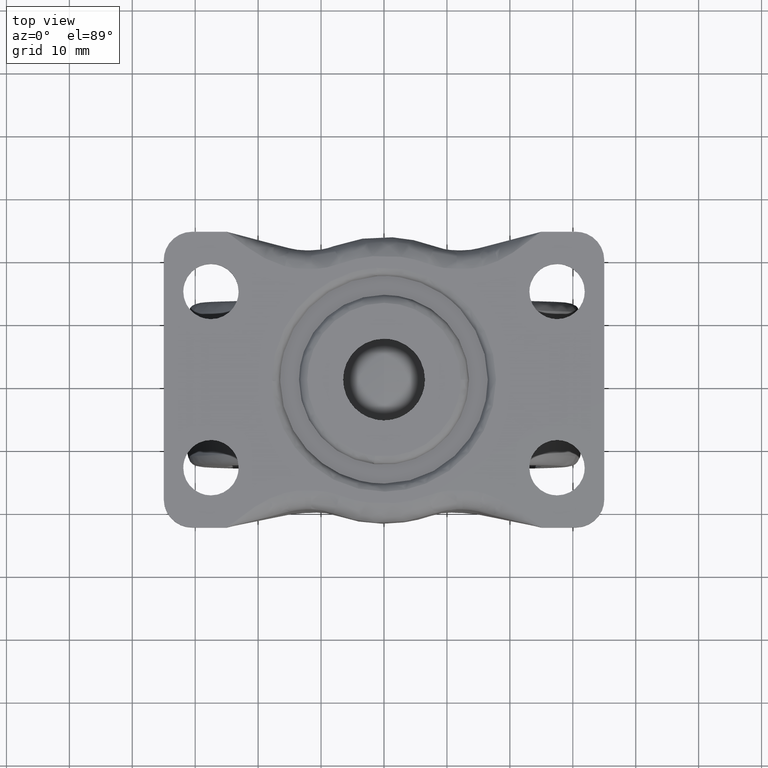
[diagram: clean part render]
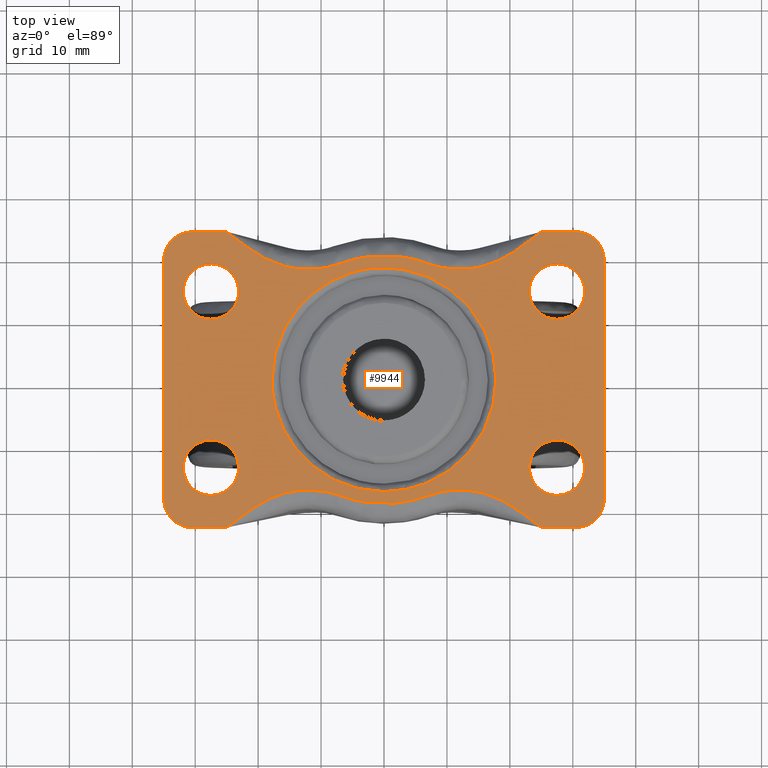
[diagram: same view with one face highlighted and labeled with its STEP entity id]
A machine part, top view. The second image highlights one B-rep face of the part: STEP entity #9944.
In plain terms, the highlighted face is a freeform B-spline surface patch.
Its self-contained STEP definition (entity closure, byte-faithful):
#2230=CARTESIAN_POINT('',(-30.859644710410169,11.158734838101150,47.500000000000000));
#2231=VERTEX_POINT('',#2230);
#2237=CARTESIAN_POINT('',(-27.500000138470700,9.600000000000003,47.500000000000000));
#2238=VERTEX_POINT('',#2237);
#2239=CARTESIAN_POINT('',(-30.859644710410169,11.158734838101150,47.500000000000000));
#2240=CARTESIAN_POINT('',(-30.525618298630590,10.763173844289820,47.499999999999993));
#2241=CARTESIAN_POINT('',(-29.871502339940768,10.221597284016729,47.500000000000142));
#2242=CARTESIAN_POINT('',(-28.694491124414970,9.713973376166065,47.499999999999773));
#2243=CARTESIAN_POINT('',(-27.938048924384670,9.599785051184480,47.500000000000142));
#2244=CARTESIAN_POINT('',(-27.500000138470700,9.600000000000003,47.500000000000000));
#2245=B_SPLINE_CURVE_WITH_KNOTS('',3,(#2239,#2240,#2241,#2242,#2243,#2244),.UNSPECIFIED.,.F.,.U.,(4,1,1,4),(0.000000078797359,1.553049608325570,2.508724733558815,3.822844168126473),.UNSPECIFIED.);
#2246=EDGE_CURVE('',#2231,#2238,#2245,.T.);
#2248=CARTESIAN_POINT('',(-23.100000000000001,14.0,47.500000000000000));
#2249=VERTEX_POINT('',#2248);
#2250=CARTESIAN_POINT('',(-27.500000138470700,9.600000000000003,47.500000000000000));
#2251=CARTESIAN_POINT('',(-27.140025082519369,9.599917597533933,47.500000000000057));
#2252=CARTESIAN_POINT('',(-26.456125569858980,9.684418643517800,47.499999999999943));
#2253=CARTESIAN_POINT('',(-25.403661099020571,10.075497838093330,47.499999999999950));
#2254=CARTESIAN_POINT('',(-24.362117778781730,10.808651719070500,47.500000000000078));
#2255=CARTESIAN_POINT('',(-23.622381149871408,11.806359571627720,47.499999999999972));
#2256=CARTESIAN_POINT('',(-23.193000255904099,12.920145626854771,47.499999999999929));
#2257=CARTESIAN_POINT('',(-23.099866504802460,13.604016161131650,47.500000000000057));
#2258=CARTESIAN_POINT('',(-23.100000000000001,14.0,47.500000000000000));
#2259=B_SPLINE_CURVE_WITH_KNOTS('',3,(#2250,#2251,#2252,#2253,#2254,#2255,#2256,#2257,#2258),.UNSPECIFIED.,.F.,.U.,(4,1,1,1,1,1,4),(0.000000379312295,1.079928237397049,2.051923522054192,3.347895113705480,4.859754210441937,5.723735382825463,6.911677353140562),.UNSPECIFIED.);
#2260=EDGE_CURVE('',#2238,#2249,#2259,.T.);
#2262=CARTESIAN_POINT('',(-27.499999861529300,18.399999999999999,47.500000000000000));
#2263=VERTEX_POINT('',#2262);
#2264=CARTESIAN_POINT('',(-23.100000000000001,14.0,47.500000000000000));
#2265=CARTESIAN_POINT('',(-23.099746927157788,14.467993034019520,47.500000000000000));
#2266=CARTESIAN_POINT('',(-23.227588508119759,15.259764809483681,47.500000000000078));
#2267=CARTESIAN_POINT('',(-23.695182836415050,16.280528609189780,47.499999999999943));
#2268=CARTESIAN_POINT('',(-24.353017272190119,17.145359325689839,47.499999999999972));
#2269=CARTESIAN_POINT('',(-25.184937222884990,17.794520670710948,47.500000000000242));
#2270=CARTESIAN_POINT('',(-26.276247329021921,18.278209099909699,47.499999999999993));
#2271=CARTESIAN_POINT('',(-27.032003134663789,18.400253656588930,47.499999999999638));
#2272=CARTESIAN_POINT('',(-27.499999861529300,18.399999999999999,47.500000000000000));
#2273=B_SPLINE_CURVE_WITH_KNOTS('',3,(#2264,#2265,#2266,#2267,#2268,#2269,#2270,#2271,#2272),.UNSPECIFIED.,.F.,.U.,(4,1,1,1,1,1,4),(0.000000379502021,1.403915691918203,2.375910954606597,3.347895038454420,4.643780731750653,5.507761884588295,6.911677197047930),.UNSPECIFIED.);
#2274=EDGE_CURVE('',#2249,#2263,#2273,.T.);
#2276=CARTESIAN_POINT('',(-30.528760109647301,17.191647207006319,47.500000000000000));
#2277=VERTEX_POINT('',#2276);
#2278=CARTESIAN_POINT('',(-27.499999861529300,18.399999999999999,47.500000000000000));
#2279=CARTESIAN_POINT('',(-28.091650984871940,18.400657612694850,47.499999999999957));
#2280=CARTESIAN_POINT('',(-29.204544161816830,18.171781728332970,47.500000000000128));
#2281=CARTESIAN_POINT('',(-30.150376350513081,17.551275429770119,47.499999999999872));
#2282=CARTESIAN_POINT('',(-30.528760109647301,17.191647207006319,47.500000000000000));
#2283=B_SPLINE_CURVE_WITH_KNOTS('',3,(#2278,#2279,#2280,#2281,#2282),.UNSPECIFIED.,.F.,.U.,(4,1,4),(0.000000092982268,1.774690226144337,3.340638647277100),.UNSPECIFIED.);
#2284=EDGE_CURVE('',#2263,#2277,#2283,.T.);
#2366=CARTESIAN_POINT('',(-31.899999999999999,14.0,47.500000000000000));
#2367=VERTEX_POINT('',#2366);
#2368=CARTESIAN_POINT('',(-30.528760109647301,17.191647207006319,47.500000000000000));
#2369=CARTESIAN_POINT('',(-30.988220309076649,16.756940563448950,47.500000000000000));
#2370=CARTESIAN_POINT('',(-31.670328342940369,15.747867634980670,47.499999999999950));
#2371=CARTESIAN_POINT('',(-31.900545557546071,14.558048400769280,47.499999999999993));
#2372=CARTESIAN_POINT('',(-31.899999999999999,14.0,47.500000000000000));
#2373=B_SPLINE_CURVE_WITH_KNOTS('',3,(#2368,#2369,#2370,#2371,#2372),.UNSPECIFIED.,.F.,.U.,(4,1,4),(0.000000090471795,1.897096706250893,3.571039315295960),.UNSPECIFIED.);
#2374=EDGE_CURVE('',#2277,#2367,#2373,.T.);
#2376=CARTESIAN_POINT('',(-31.899999999999999,14.0,47.500000000000000));
#2377=CARTESIAN_POINT('',(-31.900049448842019,13.678244997963620,47.500000000000071));
#2378=CARTESIAN_POINT('',(-31.829121897259231,13.034769001744310,47.500000000000057));
#2379=CARTESIAN_POINT('',(-31.494405729980819,12.054537710189850,47.499999999999453));
#2380=CARTESIAN_POINT('',(-31.109066714850560,11.453471459002920,47.500000000000171));
#2381=CARTESIAN_POINT('',(-30.859644710410169,11.158734838101150,47.500000000000000));
#2382=B_SPLINE_CURVE_WITH_KNOTS('',3,(#2376,#2377,#2378,#2379,#2380,#2381),.UNSPECIFIED.,.F.,.U.,(4,1,1,4),(0.000000084838570,0.965272616916994,1.930523841588983,3.088838857794543),.UNSPECIFIED.);
#2383=EDGE_CURVE('',#2367,#2231,#2382,.T.);
#2428=CARTESIAN_POINT('',(-30.859644710410169,-16.841265161898850,47.500000000000000));
#2429=VERTEX_POINT('',#2428);
#2435=CARTESIAN_POINT('',(-27.500000138470700,-18.399999999999999,47.500000000000000));
#2436=VERTEX_POINT('',#2435);
#2437=CARTESIAN_POINT('',(-30.859644710410169,-16.841265161898850,47.500000000000000));
#2438=CARTESIAN_POINT('',(-30.576932357265509,-17.175865010978860,47.499999999999972));
#2439=CARTESIAN_POINT('',(-30.001295101294570,-17.679743219071600,47.499999999999993));
#2440=CARTESIAN_POINT('',(-28.853636757602569,-18.250640912136699,47.500000000000071));
#2441=CARTESIAN_POINT('',(-28.017729015435389,-18.400385595160831,47.499999999999943));
#2442=CARTESIAN_POINT('',(-27.500000138470700,-18.399999999999999,47.500000000000000));
#2443=B_SPLINE_CURVE_WITH_KNOTS('',3,(#2437,#2438,#2439,#2440,#2441,#2442),.UNSPECIFIED.,.F.,.U.,(4,1,1,4),(0.000000078796406,1.314119513368167,2.269794638598055,3.822844168126464),.UNSPECIFIED.);
#2444=EDGE_CURVE('',#2429,#2436,#2443,.T.);
#2446=CARTESIAN_POINT('',(-23.100000000000001,-14.0,47.500000000000000));
#2447=VERTEX_POINT('',#2446);
#2448=CARTESIAN_POINT('',(-27.500000138470700,-18.399999999999999,47.500000000000000));
#2449=CARTESIAN_POINT('',(-26.959964465078102,-18.400481258904609,47.500000000000007));
#2450=CARTESIAN_POINT('',(-26.096366701556271,-18.238883346441959,47.500000000000000));
#2451=CARTESIAN_POINT('',(-25.099832565661458,-17.721640910407569,47.500000000000021));
#2452=CARTESIAN_POINT('',(-24.309869380322429,-17.089583608825411,47.499999999999993));
#2453=CARTESIAN_POINT('',(-23.705473972100929,-16.315072307452219,47.500000000000007));
#2454=CARTESIAN_POINT('',(-23.221787316437140,-15.223756610255100,47.499999999999993));
#2455=CARTESIAN_POINT('',(-23.099750107846699,-14.467991764218979,47.500000000000021));
#2456=CARTESIAN_POINT('',(-23.100000000000001,-14.0,47.500000000000000));
#2457=B_SPLINE_CURVE_WITH_KNOTS('',3,(#2448,#2449,#2450,#2451,#2452,#2453,#2454,#2455,#2456),.UNSPECIFIED.,.F.,.U.,(4,1,1,1,1,1,4),(0.000000379311157,1.619921559305186,2.591929156582037,3.347895113704792,4.643780836413892,5.507762009036499,6.911677353140562),.UNSPECIFIED.);
#2458=EDGE_CURVE('',#2436,#2447,#2457,.T.);
#2460=CARTESIAN_POINT('',(-27.499999861529300,-9.600000000000003,47.499999999999993));
#2461=VERTEX_POINT('',#2460);
#2462=CARTESIAN_POINT('',(-23.100000000000001,-14.0,47.500000000000000));
#2463=CARTESIAN_POINT('',(-23.099154886808670,-13.387873101704910,47.500000000000007));
#2464=CARTESIAN_POINT('',(-23.298615505695420,-12.452695052655089,47.500000000000021));
#2465=CARTESIAN_POINT('',(-23.991665121428792,-11.263565429845890,47.499999999999957));
#2466=CARTESIAN_POINT('',(-24.815019431570519,-10.440164574469550,47.500000000000107));
#2467=CARTESIAN_POINT('',(-26.024394808478998,-9.774542095660165,47.499999999999872));
#2468=CARTESIAN_POINT('',(-26.959974090138321,-9.599533507972828,47.500000000000107));
#2469=CARTESIAN_POINT('',(-27.499999861529300,-9.600000000000003,47.499999999999993));
#2470=B_SPLINE_CURVE_WITH_KNOTS('',3,(#2462,#2463,#2464,#2465,#2466,#2467,#2468,#2469),.UNSPECIFIED.,.F.,.U.,(4,1,1,1,1,4),(0.000000379502003,1.835917644911087,2.807884315248856,4.103793261500282,5.291756053631572,6.911677197047903),.UNSPECIFIED.);
#2471=EDGE_CURVE('',#2447,#2461,#2470,.T.);
#2473=CARTESIAN_POINT('',(-30.528760109647301,-10.808352792993690,47.500000000000000));
#2474=VERTEX_POINT('',#2473);
#2475=CARTESIAN_POINT('',(-27.499999861529300,-9.600000000000003,47.499999999999993));
#2476=CARTESIAN_POINT('',(-28.091651197479042,-9.599346674299424,47.499999999999972));
#2477=CARTESIAN_POINT('',(-29.204542817872500,-9.828215935082836,47.500000000000078));
#2478=CARTESIAN_POINT('',(-30.150375682169781,-10.448725854797390,47.499999999999929));
#2479=CARTESIAN_POINT('',(-30.528760109647301,-10.808352792993690,47.500000000000000));
#2480=B_SPLINE_CURVE_WITH_KNOTS('',3,(#2475,#2476,#2477,#2478,#2479),.UNSPECIFIED.,.F.,.U.,(4,1,4),(0.000000092982487,1.774690226144289,3.340638647277110),.UNSPECIFIED.);
#2481=EDGE_CURVE('',#2461,#2474,#2480,.T.);
#2561=CARTESIAN_POINT('',(-31.899999999999999,-14.0,47.500000000000000));
#2562=VERTEX_POINT('',#2561);
#2563=CARTESIAN_POINT('',(-30.528760109647301,-10.808352792993690,47.500000000000000));
#2564=CARTESIAN_POINT('',(-30.988221104237830,-11.243060580011520,47.500000000000107));
#2565=CARTESIAN_POINT('',(-31.670327500263120,-12.252131202937489,47.499999999999787));
#2566=CARTESIAN_POINT('',(-31.900545782846962,-13.441951905616341,47.500000000000149));
#2567=CARTESIAN_POINT('',(-31.899999999999999,-14.0,47.500000000000000));
#2568=B_SPLINE_CURVE_WITH_KNOTS('',3,(#2563,#2564,#2565,#2566,#2567),.UNSPECIFIED.,.F.,.U.,(4,1,4),(0.000000090471681,1.897096706250866,3.571039315295943),.UNSPECIFIED.);
#2569=EDGE_CURVE('',#2474,#2562,#2568,.T.);
#2571=CARTESIAN_POINT('',(-31.899999999999999,-14.0,47.500000000000000));
#2572=CARTESIAN_POINT('',(-31.900512116646279,-14.547030117843340,47.499999999999972));
#2573=CARTESIAN_POINT('',(-31.705330692838931,-15.576211111866950,47.500000000000021));
#2574=CARTESIAN_POINT('',(-31.171529692202508,-16.472899625202750,47.499999999999929));
#2575=CARTESIAN_POINT('',(-30.859644710410169,-16.841265161898850,47.500000000000000));
#2576=B_SPLINE_CURVE_WITH_KNOTS('',3,(#2571,#2572,#2573,#2574,#2575),.UNSPECIFIED.,.F.,.U.,(4,1,4),(0.000000084837523,1.640918061707243,3.088838857794540),.UNSPECIFIED.);
#2577=EDGE_CURVE('',#2562,#2429,#2576,.T.);
#2825=CARTESIAN_POINT('',(24.140355289589831,11.158734838101150,47.500000000000000));
#2826=VERTEX_POINT('',#2825);
#2832=CARTESIAN_POINT('',(27.499999861529290,9.600000000000005,47.500000000000000));
#2833=VERTEX_POINT('',#2832);
#2834=CARTESIAN_POINT('',(24.140355289589831,11.158734838101150,47.500000000000000));
#2835=CARTESIAN_POINT('',(24.474377659950090,10.763170550957200,47.499999999999993));
#2836=CARTESIAN_POINT('',(25.128501135240651,10.221606851728540,47.500000000000007));
#2837=CARTESIAN_POINT('',(26.305504317390291,9.713956816933282,47.499999999999979));
#2838=CARTESIAN_POINT('',(27.061953619094581,9.599801784829579,47.500000000000092));
#2839=CARTESIAN_POINT('',(27.499999861529290,9.600000000000005,47.500000000000000));
#2840=B_SPLINE_CURVE_WITH_KNOTS('',3,(#2834,#2835,#2836,#2837,#2838,#2839),.UNSPECIFIED.,.F.,.U.,(4,1,1,4),(0.000000078797478,1.553049608325670,2.508724733558885,3.822844168126460),.UNSPECIFIED.);
#2841=EDGE_CURVE('',#2826,#2833,#2840,.T.);
#2843=CARTESIAN_POINT('',(31.899999999999999,14.0,47.500000000000000));
#2844=VERTEX_POINT('',#2843);
#2845=CARTESIAN_POINT('',(27.499999861529290,9.600000000000005,47.500000000000000));
#2846=CARTESIAN_POINT('',(28.040020412307658,9.599532359776665,47.499999999999993));
#2847=CARTESIAN_POINT('',(28.975600103130041,9.774557249074892,47.500000000000000));
#2848=CARTESIAN_POINT('',(30.248738914928950,10.475092180358111,47.500000000000057));
#2849=CARTESIAN_POINT('',(31.105102726659378,11.374608243383920,47.499999999999972));
#2850=CARTESIAN_POINT('',(31.738844379965240,12.596402859378040,47.500000000000078));
#2851=CARTESIAN_POINT('',(31.900483153935269,13.459962682737959,47.499999999999957));
#2852=CARTESIAN_POINT('',(31.899999999999999,14.0,47.500000000000000));
#2853=B_SPLINE_CURVE_WITH_KNOTS('',3,(#2845,#2846,#2847,#2848,#2849,#2850,#2851,#2852),.UNSPECIFIED.,.F.,.U.,(4,1,1,1,1,4),(0.000000379311311,1.619921559305459,2.807884378384101,4.319748575899428,5.291756173191606,6.911677353140565),.UNSPECIFIED.);
#2854=EDGE_CURVE('',#2833,#2844,#2853,.T.);
#2856=CARTESIAN_POINT('',(27.500000138470700,18.399999999999999,47.500000000000000));
#2857=VERTEX_POINT('',#2856);
#2858=CARTESIAN_POINT('',(31.899999999999999,14.0,47.500000000000000));
#2859=CARTESIAN_POINT('',(31.900252470253939,14.467996852814400,47.499999999999943));
#2860=CARTESIAN_POINT('',(31.778222896298811,15.223762235878530,47.500000000000092));
#2861=CARTESIAN_POINT('',(31.367683380019340,16.149655456290532,47.499999999999950));
#2862=CARTESIAN_POINT('',(30.815906588774091,16.954144335205200,47.499999999999993));
#2863=CARTESIAN_POINT('',(29.953248242956100,17.736354609904431,47.500000000000192));
#2864=CARTESIAN_POINT('',(28.759892700074300,18.282677011790810,47.499999999999453));
#2865=CARTESIAN_POINT('',(27.895981421965409,18.400116269153958,47.500000000000568));
#2866=CARTESIAN_POINT('',(27.500000138470700,18.399999999999999,47.500000000000000));
#2867=B_SPLINE_CURVE_WITH_KNOTS('',3,(#2858,#2859,#2860,#2861,#2862,#2863,#2864,#2865,#2866),.UNSPECIFIED.,.F.,.U.,(4,1,1,1,1,1,4),(0.000000379502717,1.403915691918759,2.267896844907549,3.023920789247620,4.319748478294568,5.723735253699697,6.911677197047931),.UNSPECIFIED.);
#2868=EDGE_CURVE('',#2844,#2857,#2867,.T.);
#2870=CARTESIAN_POINT('',(24.471239890352699,17.191647207006319,47.500000000000000));
#2871=VERTEX_POINT('',#2870);
#2872=CARTESIAN_POINT('',(27.500000138470700,18.399999999999999,47.500000000000000));
#2873=CARTESIAN_POINT('',(27.117217438032270,18.400104300471131,47.500000000000028));
#2874=CARTESIAN_POINT('',(26.456133003451701,18.313168174630071,47.499999999999957));
#2875=CARTESIAN_POINT('',(25.407658980586088,17.923445523567072,47.500000000000078));
#2876=CARTESIAN_POINT('',(24.799237847559269,17.503245155636812,47.499999999999858));
#2877=CARTESIAN_POINT('',(24.471239890352699,17.191647207006319,47.500000000000000));
#2878=B_SPLINE_CURVE_WITH_KNOTS('',3,(#2872,#2873,#2874,#2875,#2876,#2877),.UNSPECIFIED.,.F.,.U.,(4,1,1,4),(0.000000092981786,1.148348439412077,1.983476934574824,3.340638647277105),.UNSPECIFIED.);
#2879=EDGE_CURVE('',#2857,#2871,#2878,.T.);
#2961=CARTESIAN_POINT('',(23.100000000000001,14.0,47.500000000000000));
#2962=VERTEX_POINT('',#2961);
#2963=CARTESIAN_POINT('',(24.471239890352699,17.191647207006319,47.500000000000000));
#2964=CARTESIAN_POINT('',(24.174319015827169,16.910081910513039,47.500000000000043));
#2965=CARTESIAN_POINT('',(23.776995978601398,16.410292688947042,47.500000000000021));
#2966=CARTESIAN_POINT('',(23.250649370047789,15.338766211676210,47.499999999999993));
#2967=CARTESIAN_POINT('',(23.099416737857631,14.558079963300800,47.500000000000107));
#2968=CARTESIAN_POINT('',(23.100000000000001,14.0,47.500000000000000));
#2969=B_SPLINE_CURVE_WITH_KNOTS('',3,(#2963,#2964,#2965,#2966,#2967,#2968),.UNSPECIFIED.,.F.,.U.,(4,1,1,4),(0.000000090471155,1.227561079421740,1.897096706250668,3.571039315295948),.UNSPECIFIED.);
#2970=EDGE_CURVE('',#2871,#2962,#2969,.T.);
#2972=CARTESIAN_POINT('',(23.100000000000001,14.0,47.500000000000000));
#2973=CARTESIAN_POINT('',(23.099486803035600,13.452960808287269,47.500000000000242));
#2974=CARTESIAN_POINT('',(23.294705293651280,12.423815940462379,47.499999999999631));
#2975=CARTESIAN_POINT('',(23.828440780552089,11.527080475355589,47.500000000000142));
#2976=CARTESIAN_POINT('',(24.140355289589831,11.158734838101150,47.500000000000000));
#2977=B_SPLINE_CURVE_WITH_KNOTS('',3,(#2972,#2973,#2974,#2975,#2976),.UNSPECIFIED.,.F.,.U.,(4,1,4),(0.000000084838322,1.640918061707376,3.088838857794555),.UNSPECIFIED.);
#2978=EDGE_CURVE('',#2962,#2826,#2977,.T.);
#3023=CARTESIAN_POINT('',(24.140355289589831,-16.841265161898850,47.500000000000000));
#3024=VERTEX_POINT('',#3023);
#3030=CARTESIAN_POINT('',(27.499999861529300,-18.399999999999999,47.500000000000000));
#3031=VERTEX_POINT('',#3030);
#3032=CARTESIAN_POINT('',(24.140355289589831,-16.841265161898850,47.500000000000000));
#3033=CARTESIAN_POINT('',(24.423072244548241,-17.175864159658861,47.499999999999957));
#3034=CARTESIAN_POINT('',(25.059262383646690,-17.732847178534389,47.499999999999957));
#3035=CARTESIAN_POINT('',(26.225841812669611,-18.274133220000980,47.500000000000163));
#3036=CARTESIAN_POINT('',(27.061953491503051,-18.400180371155699,47.500000000000078));
#3037=CARTESIAN_POINT('',(27.499999861529300,-18.399999999999999,47.500000000000000));
#3038=B_SPLINE_CURVE_WITH_KNOTS('',3,(#3032,#3033,#3034,#3035,#3036,#3037),.UNSPECIFIED.,.F.,.U.,(4,1,1,4),(0.000000078797509,1.314119513368695,2.508724733558847,3.822844168126472),.UNSPECIFIED.);
#3039=EDGE_CURVE('',#3024,#3031,#3038,.T.);
#3041=CARTESIAN_POINT('',(31.899999999999999,-14.0,47.500000000000000));
#3042=VERTEX_POINT('',#3041);
#3043=CARTESIAN_POINT('',(27.499999861529300,-18.399999999999999,47.500000000000000));
#3044=CARTESIAN_POINT('',(27.967991302358360,-18.400248747592631,47.500000000000078));
#3045=CARTESIAN_POINT('',(28.723759274841591,-18.278214447716572,47.499999999999908));
#3046=CARTESIAN_POINT('',(29.815055759676110,-17.794525974440951,47.500000000000128));
#3047=CARTESIAN_POINT('',(30.675707301257280,-17.122970566174988,47.499999999999837));
#3048=CARTESIAN_POINT('',(31.323755005272311,-16.248890745933359,47.500000000000462));
#3049=CARTESIAN_POINT('',(31.778204404716760,-15.223751843080651,47.499999999999623));
#3050=CARTESIAN_POINT('',(31.900259121447910,-14.467998845948490,47.500000000000050));
#3051=CARTESIAN_POINT('',(31.899999999999999,-14.0,47.500000000000000));
#3052=B_SPLINE_CURVE_WITH_KNOTS('',3,(#3043,#3044,#3045,#3046,#3047,#3048,#3049,#3050,#3051),.UNSPECIFIED.,.F.,.U.,(4,1,1,1,1,1,4),(0.000000379312751,1.403915723460117,2.267896895931436,3.563782618530819,4.643780836414096,5.507762009036574,6.911677353140567),.UNSPECIFIED.);
#3053=EDGE_CURVE('',#3031,#3042,#3052,.T.);
#3055=CARTESIAN_POINT('',(27.500000138470700,-9.600000000000003,47.500000000000000));
#3056=VERTEX_POINT('',#3055);
#3057=CARTESIAN_POINT('',(31.899999999999999,-14.0,47.500000000000000));
#3058=CARTESIAN_POINT('',(31.900492045754870,-13.459958002757050,47.500000000000057));
#3059=CARTESIAN_POINT('',(31.738851902403091,-12.596386940542329,47.499999999999837));
#3060=CARTESIAN_POINT('',(31.188339516004429,-11.535535766681710,47.500000000000213));
#3061=CARTESIAN_POINT('',(30.488856222629462,-10.704069902590501,47.499999999999730));
#3062=CARTESIAN_POINT('',(29.626146195148159,-10.096429591308249,47.500000000000192));
#3063=CARTESIAN_POINT('',(28.579856149388331,-9.692995702685471,47.499999999999943));
#3064=CARTESIAN_POINT('',(27.895982379751651,-9.599867601462249,47.500000000000149));
#3065=CARTESIAN_POINT('',(27.500000138470700,-9.600000000000003,47.500000000000000));
#3066=B_SPLINE_CURVE_WITH_KNOTS('',3,(#3057,#3058,#3059,#3060,#3061,#3062,#3063,#3064,#3065),.UNSPECIFIED.,.F.,.U.,(4,1,1,1,1,1,4),(0.000000379503954,1.619921522874727,2.591929098227230,3.563782538313324,4.859754100623491,5.723735253699815,6.911677197047904),.UNSPECIFIED.);
#3067=EDGE_CURVE('',#3042,#3056,#3066,.T.);
#3069=CARTESIAN_POINT('',(24.471239890352699,-10.808352792993681,47.500000000000000));
#3070=VERTEX_POINT('',#3069);
#3071=CARTESIAN_POINT('',(27.500000138470700,-9.600000000000003,47.500000000000000));
#3072=CARTESIAN_POINT('',(27.117215034464969,-9.599874112770978,47.500000000000050));
#3073=CARTESIAN_POINT('',(26.456140383185659,-9.686860645354987,47.499999999999929));
#3074=CARTESIAN_POINT('',(25.407637278106730,-10.076512968417489,47.500000000000043));
#3075=CARTESIAN_POINT('',(24.799261408236219,-10.496789420177519,47.500000000000021));
#3076=CARTESIAN_POINT('',(24.471239890352699,-10.808352792993681,47.500000000000000));
#3077=B_SPLINE_CURVE_WITH_KNOTS('',3,(#3071,#3072,#3073,#3074,#3075,#3076),.UNSPECIFIED.,.F.,.U.,(4,1,1,4),(0.000000092982411,1.148348439412427,1.983476934575028,3.340638647277099),.UNSPECIFIED.);
#3078=EDGE_CURVE('',#3056,#3070,#3077,.T.);
#3160=CARTESIAN_POINT('',(23.100000000000001,-14.0,47.500000000000000));
#3161=VERTEX_POINT('',#3160);
#3162=CARTESIAN_POINT('',(24.471239890352699,-10.808352792993681,47.500000000000000));
#3163=CARTESIAN_POINT('',(24.011817145341940,-11.243068586905350,47.499999999999972));
#3164=CARTESIAN_POINT('',(23.329572852659538,-12.252108683552249,47.499999999999950));
#3165=CARTESIAN_POINT('',(23.099516283436721,-13.441964988681320,47.500000000000071));
#3166=CARTESIAN_POINT('',(23.100000000000001,-14.0,47.500000000000000));
#3167=B_SPLINE_CURVE_WITH_KNOTS('',3,(#3162,#3163,#3164,#3165,#3166),.UNSPECIFIED.,.F.,.U.,(4,1,4),(0.000000090471838,1.897096706250901,3.571039315295949),.UNSPECIFIED.);
#3168=EDGE_CURVE('',#3070,#3161,#3167,.T.);
#3170=CARTESIAN_POINT('',(23.100000000000001,-14.0,47.500000000000000));
#3171=CARTESIAN_POINT('',(23.099168873553019,-14.611480028417430,47.499999999999957));
#3172=CARTESIAN_POINT('',(23.318311182690501,-15.640275048157971,47.499999999999957));
#3173=CARTESIAN_POINT('',(23.870156570507049,-16.521972907941489,47.500000000000092));
#3174=CARTESIAN_POINT('',(24.140355289589831,-16.841265161898850,47.500000000000000));
#3175=B_SPLINE_CURVE_WITH_KNOTS('',3,(#3170,#3171,#3172,#3173,#3174),.UNSPECIFIED.,.F.,.U.,(4,1,4),(0.000000084838101,1.833979249745873,3.088838857794547),.UNSPECIFIED.);
#3176=EDGE_CURVE('',#3161,#3024,#3175,.T.);
#4084=CARTESIAN_POINT('',(-17.798594584262538,-0.223675510153320,47.500000000000000));
#4085=VERTEX_POINT('',#4084);
#4096=CARTESIAN_POINT('',(0.111681373985398,-17.799649638987411,47.500000000000000));
#4097=VERTEX_POINT('',#4096);
#4098=CARTESIAN_POINT('',(0.111681373985398,-17.799649638987411,47.500000000000000));
#4099=CARTESIAN_POINT('',(-1.193685328149472,-17.808078211361199,47.500000000000050));
#4100=CARTESIAN_POINT('',(-3.225528723709245,-17.596160601385940,47.499999999999957));
#4101=CARTESIAN_POINT('',(-6.022731820708393,-16.807343589852199,47.500000000000071));
#4102=CARTESIAN_POINT('',(-8.157465509542396,-15.881281323946959,47.499999999999950));
#4103=CARTESIAN_POINT('',(-10.706916515957200,-14.340329665461880,47.500000000000043));
#4104=CARTESIAN_POINT('',(-13.065144171745960,-12.267963958704760,47.500000000000362));
#4105=CARTESIAN_POINT('',(-15.042357146881979,-9.656596620820901,47.499999999999133));
#4106=CARTESIAN_POINT('',(-16.306778000609839,-7.281705331554054,47.500000000002039));
#4107=CARTESIAN_POINT('',(-17.424447981799879,-4.207710762756753,47.499999999997868));
#4108=CARTESIAN_POINT('',(-17.779145583587301,-1.819098817617162,47.500000000001208));
#4109=CARTESIAN_POINT('',(-17.798594584262538,-0.223675510153320,47.500000000000000));
#4110=B_SPLINE_CURVE_WITH_KNOTS('',3,(#4098,#4099,#4100,#4101,#4102,#4103,#4104,#4105,#4106,#4107,#4108,#4109),.UNSPECIFIED.,.F.,.U.,(4,1,1,1,1,1,1,1,1,4),(0.000000178185932,3.916132213506224,6.091815351090745,8.702632672403709,10.878316964374759,15.011960351442220,18.057872745499530,20.668694762168268,23.061918174649879,27.848348662986240),.UNSPECIFIED.);
#4111=EDGE_CURVE('',#4097,#4085,#4110,.T.);
#4113=CARTESIAN_POINT('',(17.800000000000001,0.0,47.500000000000000));
#4114=VERTEX_POINT('',#4113);
#4115=CARTESIAN_POINT('',(17.800000000000001,0.0,47.500000000000000));
#4116=CARTESIAN_POINT('',(17.800906110347380,-1.813180315473536,47.499999999999929));
#4117=CARTESIAN_POINT('',(17.352710040707759,-4.713428433740893,47.500000000000128));
#4118=CARTESIAN_POINT('',(15.690299460089459,-8.675748025782896,47.499999999999837));
#4119=CARTESIAN_POINT('',(13.447984020289940,-11.918693941019839,47.500000000000128));
#4120=CARTESIAN_POINT('',(10.664674997301910,-14.396289931316170,47.500000000000398));
#4121=CARTESIAN_POINT('',(7.530976560498845,-16.240201501800801,47.499999999999169));
#4122=CARTESIAN_POINT('',(4.170758723750189,-17.461032224998551,47.500000000000007));
#4123=CARTESIAN_POINT('',(1.489587001849417,-17.791292262125399,47.500000000000092));
#4124=CARTESIAN_POINT('',(0.111681373985398,-17.799649638987411,47.500000000000000));
#4125=B_SPLINE_CURVE_WITH_KNOTS('',3,(#4115,#4116,#4117,#4118,#4119,#4120,#4121,#4122,#4123,#4124),.UNSPECIFIED.,.F.,.U.,(4,1,1,1,1,1,1,4),(0.000000178177977,5.439177018353089,8.702731795729562,12.836538255537899,17.187802806173089,19.798659875839341,23.714920441827172,27.848665855172332),.UNSPECIFIED.);
#4126=EDGE_CURVE('',#4114,#4097,#4125,.T.);
#4128=CARTESIAN_POINT('',(-1.241251878081032,17.756668993744739,47.500000000000000));
#4129=VERTEX_POINT('',#4128);
#4130=CARTESIAN_POINT('',(-1.241251878081032,17.756668993744739,47.500000000000000));
#4131=CARTESIAN_POINT('',(0.276031290981125,17.863242020000708,47.499999999999993));
#4132=CARTESIAN_POINT('',(2.572211042305963,17.728204257308640,47.500000000000050));
#4133=CARTESIAN_POINT('',(5.672795858363879,16.934312056463330,47.499999999999979));
#4134=CARTESIAN_POINT('',(8.281321435620521,15.857245561675770,47.500000000000007));
#4135=CARTESIAN_POINT('',(10.540194993429660,14.426306997003710,47.500000000000050));
#4136=CARTESIAN_POINT('',(12.615406192929971,12.635106945346340,47.500000000000121));
#4137=CARTESIAN_POINT('',(14.435522910555250,10.577354220943221,47.499999999999673));
#4138=CARTESIAN_POINT('',(16.256886389953092,7.571658379585593,47.500000000000433));
#4139=CARTESIAN_POINT('',(17.508823957831080,3.954434982919189,47.499999999999247));
#4140=CARTESIAN_POINT('',(17.800210932437349,1.292816138866942,47.500000000001393));
#4141=CARTESIAN_POINT('',(17.800000000000001,0.0,47.500000000000000));
#4142=B_SPLINE_CURVE_WITH_KNOTS('',3,(#4130,#4131,#4132,#4133,#4134,#4135,#4136,#4137,#4138,#4139,#4140,#4141),.UNSPECIFIED.,.F.,.U.,(4,1,1,1,1,1,1,1,1,4),(0.000000155111984,4.562903930233514,6.844362825417662,9.582138280365193,13.004348454872741,14.829423298871911,17.795321229918908,21.217537273220309,25.324196863357781,29.202634556150478),.UNSPECIFIED.);
#4143=EDGE_CURVE('',#4129,#4114,#4142,.T.);
#4191=CARTESIAN_POINT('',(-17.800000000000001,0.0,47.500000000000000));
#4192=VERTEX_POINT('',#4191);
#4193=CARTESIAN_POINT('',(-17.800000000000001,0.0,47.500000000000000));
#4194=CARTESIAN_POINT('',(-17.800825959585460,1.739576824754501,47.499999999999929));
#4195=CARTESIAN_POINT('',(-17.450336623095140,4.104692754243991,47.500000000000057));
#4196=CARTESIAN_POINT('',(-16.174659841269950,7.644387727038069,47.500000000000000));
#4197=CARTESIAN_POINT('',(-14.653813360869860,10.325544471317469,47.499999999999950));
#4198=CARTESIAN_POINT('',(-12.117175124865710,13.210695919041990,47.499999999999908));
#4199=CARTESIAN_POINT('',(-9.372900044170452,15.272868579856199,47.500000000000547));
#4200=CARTESIAN_POINT('',(-5.654968824419030,17.046006070864141,47.499999999999247));
#4201=CARTESIAN_POINT('',(-2.976631365401700,17.636115587056189,47.500000000000632));
#4202=CARTESIAN_POINT('',(-1.241251878081032,17.756668993744739,47.500000000000000));
#4203=B_SPLINE_CURVE_WITH_KNOTS('',3,(#4193,#4194,#4195,#4196,#4197,#4198,#4199,#4200,#4201,#4202),.UNSPECIFIED.,.F.,.U.,(4,1,1,1,1,1,1,4),(0.000000178261065,5.218352555367503,7.096993486061340,11.271696636189599,14.402701386286999,18.577385624647889,21.499715907798059,26.718067631349360),.UNSPECIFIED.);
#4204=EDGE_CURVE('',#4192,#4129,#4203,.T.);
#4206=CARTESIAN_POINT('',(-17.798594584262538,-0.223675510153320,47.500000000000000));
#4207=CARTESIAN_POINT('',(-17.800000000000001,0.0,47.500000000000000));
#4208=QUASI_UNIFORM_CURVE('',1,(#4206,#4207),.UNSPECIFIED.,.F.,.U.);
#4209=EDGE_CURVE('',#4085,#4192,#4208,.T.);
#4447=CARTESIAN_POINT('',(-15.750559976821000,18.012932795070700,47.500000000000000));
#4448=VERTEX_POINT('',#4447);
#4462=CARTESIAN_POINT('',(-25.000045595003449,23.500000000000000,47.500000000000000));
#4463=VERTEX_POINT('',#4462);
#4471=CARTESIAN_POINT('',(-15.750559976820950,18.012932795070650,47.500000000000000));
#4472=CARTESIAN_POINT('',(-19.083764841822099,18.873720461737399,47.500000000000000));
#4473=CARTESIAN_POINT('',(-22.041905218412751,21.186860230868700,47.500000000000000));
#4474=CARTESIAN_POINT('',(-25.000045595003449,23.500000000000000,47.500000000000000));
#4475=QUASI_UNIFORM_CURVE('',3,(#4471,#4472,#4473,#4474),.UNSPECIFIED.,.F.,.U.);
#4476=EDGE_CURVE('',#4448,#4463,#4475,.T.);
#4509=CARTESIAN_POINT('',(-12.499967442113460,17.599998000000049,47.500000000000000));
#4510=VERTEX_POINT('',#4509);
#4531=CARTESIAN_POINT('',(-12.499967442113460,17.599998000000049,47.500000000000000));
#4532=CARTESIAN_POINT('',(-13.595153756830580,17.599359542641182,47.500000000000050));
#4533=CARTESIAN_POINT('',(-14.690326667965961,17.738415800083938,47.499999999999943));
#4534=CARTESIAN_POINT('',(-15.750559976821000,18.012932795070700,47.500000000000000));
#4535=B_SPLINE_CURVE_WITH_KNOTS('',3,(#4531,#4532,#4533,#4534),.UNSPECIFIED.,.F.,.U.,(4,4),(3.790968E-009,3.285547760110946),.UNSPECIFIED.);
#4536=EDGE_CURVE('',#4510,#4448,#4535,.T.);
#4555=CARTESIAN_POINT('',(-11.561934130171281,17.599998000000049,47.500000000000000));
#4556=VERTEX_POINT('',#4555);
#4576=CARTESIAN_POINT('',(-12.030950786142380,17.599998000000038,47.499999999999993));
#4577=VERTEX_POINT('',#4576);
#4578=CARTESIAN_POINT('',(-12.030950786142380,17.599998000000038,47.499999999999993));
#4579=CARTESIAN_POINT('',(-12.499967442113460,17.599998000000049,47.500000000000000));
#4580=QUASI_UNIFORM_CURVE('',1,(#4578,#4579),.UNSPECIFIED.,.F.,.U.);
#4581=EDGE_CURVE('',#4577,#4510,#4580,.T.);
#4583=CARTESIAN_POINT('',(-11.561934130171281,17.599998000000049,47.500000000000000));
#4584=CARTESIAN_POINT('',(-12.030950786142380,17.599998000000038,47.499999999999993));
#4585=QUASI_UNIFORM_CURVE('',1,(#4583,#4584),.UNSPECIFIED.,.F.,.U.);
#4586=EDGE_CURVE('',#4556,#4577,#4585,.T.);
#4639=CARTESIAN_POINT('',(-6.969154960952889,18.437629948739851,47.500000000000000));
#4640=VERTEX_POINT('',#4639);
#4663=CARTESIAN_POINT('',(-6.969154960952889,18.437629948739851,47.500000000000000));
#4664=CARTESIAN_POINT('',(-8.432275205649944,17.882501539916021,47.500000000000121));
#4665=CARTESIAN_POINT('',(-9.997017395907751,17.596962835139799,47.500000000000000));
#4666=CARTESIAN_POINT('',(-11.561934130171281,17.599998000000049,47.500000000000000));
#4667=B_SPLINE_CURVE_WITH_KNOTS('',3,(#4663,#4664,#4665,#4666),.UNSPECIFIED.,.F.,.U.,(4,4),(0.000000012143599,4.694378249250085),.UNSPECIFIED.);
#4668=EDGE_CURVE('',#4640,#4556,#4667,.T.);
#4721=CARTESIAN_POINT('',(6.969154960952869,18.437629948739851,47.500000000000000));
#4722=VERTEX_POINT('',#4721);
#4747=CARTESIAN_POINT('',(6.969154960952869,18.437629948739851,47.500000000000000));
#4748=CARTESIAN_POINT('',(5.371781522932885,19.036887090439581,47.500000000000149));
#4749=CARTESIAN_POINT('',(2.677051236851014,19.666309455453799,47.499999999999787));
#4750=CARTESIAN_POINT('',(-0.744689536069063,19.742788657595231,47.500000000000227));
#4751=CARTESIAN_POINT('',(-3.772502360903479,19.419220968844581,47.499999999999588));
#4752=CARTESIAN_POINT('',(-5.718995682656139,18.906452811894990,47.499999999999993));
#4753=CARTESIAN_POINT('',(-6.969154960952889,18.437629948739851,47.500000000000000));
#4754=B_SPLINE_CURVE_WITH_KNOTS('',3,(#4747,#4748,#4749,#4750,#4751,#4752,#4753),.UNSPECIFIED.,.F.,.U.,(4,1,1,1,4),(0.000000043742187,5.118112011665234,8.233469595314148,10.236216079475920,14.241694040006269),.UNSPECIFIED.);
#4755=EDGE_CURVE('',#4722,#4640,#4754,.T.);
#4808=CARTESIAN_POINT('',(11.561934130171441,17.599998000000049,47.500000000000000));
#4809=VERTEX_POINT('',#4808);
#4831=CARTESIAN_POINT('',(11.561934130171441,17.599998000000049,47.500000000000000));
#4832=CARTESIAN_POINT('',(9.997006648678948,17.596847643507179,47.500000000000227));
#4833=CARTESIAN_POINT('',(8.432295113048095,17.882648482971970,47.499999999999950));
#4834=CARTESIAN_POINT('',(6.969154960952869,18.437629948739851,47.500000000000000));
#4835=B_SPLINE_CURVE_WITH_KNOTS('',3,(#4831,#4832,#4833,#4834),.UNSPECIFIED.,.F.,.U.,(4,4),(0.000000012144110,4.694378593417086),.UNSPECIFIED.);
#4836=EDGE_CURVE('',#4809,#4722,#4835,.T.);
#4855=CARTESIAN_POINT('',(12.499999999998501,17.599997999737148,47.500000000000000));
#4856=VERTEX_POINT('',#4855);
#4876=CARTESIAN_POINT('',(12.499999999998501,17.599997999737148,47.500000000000000));
#4877=CARTESIAN_POINT('',(11.561934130171441,17.599998000000049,47.500000000000000));
#4878=QUASI_UNIFORM_CURVE('',1,(#4876,#4877),.UNSPECIFIED.,.F.,.U.);
#4879=EDGE_CURVE('',#4856,#4809,#4878,.T.);
#4912=CARTESIAN_POINT('',(15.750571695517150,18.012928722425048,47.500000000000000));
#4913=VERTEX_POINT('',#4912);
#4935=CARTESIAN_POINT('',(15.750571695517150,18.012928722425048,47.500000000000000));
#4936=CARTESIAN_POINT('',(14.690347405298310,17.738413524463251,47.499999999999737));
#4937=CARTESIAN_POINT('',(13.595177799101640,17.599358621136929,47.500000000000092));
#4938=CARTESIAN_POINT('',(12.499999999998501,17.599997999737148,47.500000000000000));
#4939=B_SPLINE_CURVE_WITH_KNOTS('',3,(#4935,#4936,#4937,#4938),.UNSPECIFIED.,.F.,.U.,(4,4),(3.791024E-009,3.285526562446870),.UNSPECIFIED.);
#4940=EDGE_CURVE('',#4913,#4856,#4939,.T.);
#4965=CARTESIAN_POINT('',(25.000077084118399,23.500000000000000,47.500000000000000));
#4966=VERTEX_POINT('',#4965);
#4967=CARTESIAN_POINT('',(25.000077084118399,23.500000000000000,47.500000000000000));
#4968=CARTESIAN_POINT('',(22.041930070504201,21.186858861212549,47.500000000000000));
#4969=CARTESIAN_POINT('',(19.083783056889949,18.873717722425098,47.500000000000000));
#4970=CARTESIAN_POINT('',(15.750571695517150,18.012928722425048,47.500000000000000));
#4971=QUASI_UNIFORM_CURVE('',3,(#4967,#4968,#4969,#4970),.UNSPECIFIED.,.F.,.U.);
#4972=EDGE_CURVE('',#4966,#4913,#4971,.T.);
#5005=CARTESIAN_POINT('',(15.750571695517150,-18.012928722425048,47.500000000000000));
#5006=VERTEX_POINT('',#5005);
#5020=CARTESIAN_POINT('',(25.000077084118399,-23.500000000000000,47.500000000000000));
#5021=VERTEX_POINT('',#5020);
#5029=CARTESIAN_POINT('',(15.750571695517150,-18.012928722425048,47.500000000000000));
#5030=CARTESIAN_POINT('',(19.083783056889949,-18.873717722425098,47.500000000000000));
#5031=CARTESIAN_POINT('',(22.041930070504201,-21.186858861212549,47.500000000000000));
#5032=CARTESIAN_POINT('',(25.000077084118399,-23.500000000000000,47.500000000000000));
#5033=QUASI_UNIFORM_CURVE('',3,(#5029,#5030,#5031,#5032),.UNSPECIFIED.,.F.,.U.);
#5034=EDGE_CURVE('',#5006,#5021,#5033,.T.);
#5067=CARTESIAN_POINT('',(12.499954686946740,-17.599998000000049,47.500000000000000));
#5068=VERTEX_POINT('',#5067);
#5090=CARTESIAN_POINT('',(12.499954686946740,-17.599998000000049,47.500000000000000));
#5091=CARTESIAN_POINT('',(13.595147712078109,-17.599354758773849,47.500000000000057));
#5092=CARTESIAN_POINT('',(14.690332647240091,-17.738409692489860,47.500000000000021));
#5093=CARTESIAN_POINT('',(15.750571695517150,-18.012928722425048,47.500000000000000));
#5094=B_SPLINE_CURVE_WITH_KNOTS('',3,(#5090,#5091,#5092,#5093),.UNSPECIFIED.,.F.,.U.,(4,4),(3.791277E-009,3.285571882848313),.UNSPECIFIED.);
#5095=EDGE_CURVE('',#5068,#5006,#5094,.T.);
#5114=CARTESIAN_POINT('',(11.561934130171460,-17.599998000000049,47.500000000000000));
#5115=VERTEX_POINT('',#5114);
#5136=CARTESIAN_POINT('',(12.030944408559090,-17.599998000000049,47.500000000000000));
#5137=VERTEX_POINT('',#5136);
#5138=CARTESIAN_POINT('',(12.030944408559090,-17.599998000000049,47.500000000000000));
#5139=CARTESIAN_POINT('',(12.499954686946740,-17.599998000000049,47.500000000000000));
#5140=QUASI_UNIFORM_CURVE('',1,(#5138,#5139),.UNSPECIFIED.,.F.,.U.);
#5141=EDGE_CURVE('',#5137,#5068,#5140,.T.);
#5143=CARTESIAN_POINT('',(11.561934130171460,-17.599998000000049,47.500000000000000));
#5144=CARTESIAN_POINT('',(12.030944408559090,-17.599998000000049,47.500000000000000));
#5145=QUASI_UNIFORM_CURVE('',1,(#5143,#5144),.UNSPECIFIED.,.F.,.U.);
#5146=EDGE_CURVE('',#5115,#5137,#5145,.T.);
#5199=CARTESIAN_POINT('',(6.969154960952889,-18.437629948739851,47.500000000000000));
#5200=VERTEX_POINT('',#5199);
#5223=CARTESIAN_POINT('',(6.969154960952889,-18.437629948739851,47.500000000000000));
#5224=CARTESIAN_POINT('',(8.432245508318733,-17.882352970544201,47.500000000000227));
#5225=CARTESIAN_POINT('',(9.997042609561051,-17.597110934765968,47.499999999999851));
#5226=CARTESIAN_POINT('',(11.561934130171460,-17.599998000000049,47.500000000000000));
#5227=B_SPLINE_CURVE_WITH_KNOTS('',3,(#5223,#5224,#5225,#5226),.UNSPECIFIED.,.F.,.U.,(4,4),(0.000000012143701,4.694378249239096),.UNSPECIFIED.);
#5228=EDGE_CURVE('',#5200,#5115,#5227,.T.);
#5281=CARTESIAN_POINT('',(-6.969154960952869,-18.437629948739851,47.500000000000000));
#5282=VERTEX_POINT('',#5281);
#5307=CARTESIAN_POINT('',(-6.969154960952869,-18.437629948739851,47.500000000000000));
#5308=CARTESIAN_POINT('',(-5.371781522932885,-19.036887090439581,47.500000000000149));
#5309=CARTESIAN_POINT('',(-2.677051236851014,-19.666309455453799,47.499999999999787));
#5310=CARTESIAN_POINT('',(0.744689536069063,-19.742788657595231,47.500000000000227));
#5311=CARTESIAN_POINT('',(3.772502360903479,-19.419220968844581,47.499999999999588));
#5312=CARTESIAN_POINT('',(5.718995682656139,-18.906452811894990,47.499999999999993));
#5313=CARTESIAN_POINT('',(6.969154960952889,-18.437629948739851,47.500000000000000));
#5314=B_SPLINE_CURVE_WITH_KNOTS('',3,(#5307,#5308,#5309,#5310,#5311,#5312,#5313),.UNSPECIFIED.,.F.,.U.,(4,1,1,1,4),(0.000000043742187,5.118112011665234,8.233469595314148,10.236216079475920,14.241694040006269),.UNSPECIFIED.);
#5315=EDGE_CURVE('',#5282,#5200,#5314,.T.);
#5368=CARTESIAN_POINT('',(-11.561934130171441,-17.599998000000049,47.500000000000000));
#5369=VERTEX_POINT('',#5368);
#5391=CARTESIAN_POINT('',(-11.561934130171441,-17.599998000000049,47.500000000000000));
#5392=CARTESIAN_POINT('',(-9.997006648678948,-17.596847643507179,47.500000000000227));
#5393=CARTESIAN_POINT('',(-8.432295113048095,-17.882648482971970,47.499999999999950));
#5394=CARTESIAN_POINT('',(-6.969154960952869,-18.437629948739851,47.500000000000000));
#5395=B_SPLINE_CURVE_WITH_KNOTS('',3,(#5391,#5392,#5393,#5394),.UNSPECIFIED.,.F.,.U.,(4,4),(0.000000012144110,4.694378593417086),.UNSPECIFIED.);
#5396=EDGE_CURVE('',#5369,#5282,#5395,.T.);
#5415=CARTESIAN_POINT('',(-12.499999999999201,-17.599997999864350,47.500000000000000));
#5416=VERTEX_POINT('',#5415);
#5435=CARTESIAN_POINT('',(-12.499999999999201,-17.599997999864350,47.500000000000000));
#5436=CARTESIAN_POINT('',(-11.561934130171441,-17.599998000000049,47.500000000000000));
#5437=QUASI_UNIFORM_CURVE('',1,(#5435,#5436),.UNSPECIFIED.,.F.,.U.);
#5438=EDGE_CURVE('',#5416,#5369,#5437,.T.);
#5471=CARTESIAN_POINT('',(-15.750559976820950,-18.012932795070650,47.500000000000000));
#5472=VERTEX_POINT('',#5471);
#5494=CARTESIAN_POINT('',(-15.750559976820950,-18.012932795070650,47.500000000000000));
#5495=CARTESIAN_POINT('',(-14.690339535839460,-17.738418535183872,47.500000000000107));
#5496=CARTESIAN_POINT('',(-13.595174147689219,-17.599362230851181,47.500000000000007));
#5497=CARTESIAN_POINT('',(-12.499999999999201,-17.599997999864350,47.500000000000000));
#5498=B_SPLINE_CURVE_WITH_KNOTS('',3,(#5494,#5495,#5496,#5497),.UNSPECIFIED.,.F.,.U.,(4,4),(3.790843E-009,3.285515196950645),.UNSPECIFIED.);
#5499=EDGE_CURVE('',#5472,#5416,#5498,.T.);
#5524=CARTESIAN_POINT('',(-25.000045595003449,-23.500000000000000,47.500000000000000));
#5525=VERTEX_POINT('',#5524);
#5526=CARTESIAN_POINT('',(-25.000045595003449,-23.500000000000000,47.500000000000000));
#5527=CARTESIAN_POINT('',(-22.041905218412751,-21.186860230868700,47.500000000000000));
#5528=CARTESIAN_POINT('',(-19.083764841822099,-18.873720461737399,47.500000000000000));
#5529=CARTESIAN_POINT('',(-15.750559976820950,-18.012932795070650,47.500000000000000));
#5530=QUASI_UNIFORM_CURVE('',3,(#5526,#5527,#5528,#5529),.UNSPECIFIED.,.F.,.U.);
#5531=EDGE_CURVE('',#5525,#5472,#5530,.T.);
#9785=CARTESIAN_POINT('',(-38.496499864326417,25.847649908904881,47.500000000000000));
#9786=CARTESIAN_POINT('',(38.496501741872727,25.847649908904881,47.500000000000000));
#9787=CARTESIAN_POINT('',(-38.496499864326417,-25.847651169543120,47.500000000000000));
#9788=CARTESIAN_POINT('',(38.496501741872727,-25.847651169543120,47.500000000000000));
#9789=B_SPLINE_SURFACE_WITH_KNOTS('',1,1,((#9785,#9787),(#9786,#9788)),.UNSPECIFIED.,.F.,.F.,.U.,(2,2),(2,2),(0.0,76.993001606199158),(0.0,51.695301078447997),.UNSPECIFIED.);
#9790=ORIENTED_EDGE('',*,*,#4536,.T.);
#9791=ORIENTED_EDGE('',*,*,#4476,.T.);
#9792=CARTESIAN_POINT('',(-30.499998586283301,23.500000000000000,47.500000000000000));
#9793=VERTEX_POINT('',#9792);
#9794=CARTESIAN_POINT('',(-25.000045595003449,23.500000000000000,47.500000000000000));
#9795=CARTESIAN_POINT('',(-30.499998586283301,23.500000000000000,47.500000000000000));
#9796=QUASI_UNIFORM_CURVE('',1,(#9794,#9795),.UNSPECIFIED.,.F.,.U.);
#9797=EDGE_CURVE('',#4463,#9793,#9796,.T.);
#9798=ORIENTED_EDGE('',*,*,#9797,.T.);
#9799=CARTESIAN_POINT('',(-34.999999999998899,19.000003141592650,47.500000000000000));
#9800=VERTEX_POINT('',#9799);
#9801=CARTESIAN_POINT('',(-30.499998586283301,23.500000000000000,47.500000000000000));
#9802=CARTESIAN_POINT('',(-31.052323324928480,23.500516032685692,47.499999999999957));
#9803=CARTESIAN_POINT('',(-31.935467402436320,23.335156549591620,47.500000000000021));
#9804=CARTESIAN_POINT('',(-33.086279653544153,22.738125843210980,47.499999999999993));
#9805=CARTESIAN_POINT('',(-33.865535334402608,22.049041466594261,47.500000000000057));
#9806=CARTESIAN_POINT('',(-34.440600008603852,21.232370234956829,47.499999999999879));
#9807=CARTESIAN_POINT('',(-34.875471693512239,20.251594669340172,47.500000000000341));
#9808=CARTESIAN_POINT('',(-35.000237576879123,19.478638033524380,47.499999999999879));
#9809=CARTESIAN_POINT('',(-34.999999999998899,19.000003141592650,47.500000000000000));
#9810=B_SPLINE_CURVE_WITH_KNOTS('',3,(#9801,#9802,#9803,#9804,#9805,#9806,#9807,#9808,#9809),.UNSPECIFIED.,.F.,.U.,(4,1,1,1,1,1,4),(0.000000315637588,1.656738440424508,2.650796193344391,3.865654736336920,4.749297114810989,5.632918435942917,7.068759875638300),.UNSPECIFIED.);
#9811=EDGE_CURVE('',#9793,#9800,#9810,.T.);
#9812=ORIENTED_EDGE('',*,*,#9811,.T.);
#9813=CARTESIAN_POINT('',(-35.0,-19.0,47.500000000000000));
#9814=VERTEX_POINT('',#9813);
#9815=CARTESIAN_POINT('',(-34.999999999998899,19.000003141592650,47.500000000000000));
#9816=CARTESIAN_POINT('',(-35.0,-19.0,47.500000000000000));
#9817=QUASI_UNIFORM_CURVE('',1,(#9815,#9816),.UNSPECIFIED.,.F.,.U.);
#9818=EDGE_CURVE('',#9800,#9814,#9817,.T.);
#9819=ORIENTED_EDGE('',*,*,#9818,.T.);
#9820=CARTESIAN_POINT('',(-30.500000000000000,-23.500000000000000,47.500000000000000));
#9821=VERTEX_POINT('',#9820);
#9822=CARTESIAN_POINT('',(-35.0,-19.0,47.500000000000000));
#9823=CARTESIAN_POINT('',(-35.000247863302462,-19.478627636165051,47.499999999999993));
#9824=CARTESIAN_POINT('',(-34.845901526051620,-20.435681791049358,47.500000000000050));
#9825=CARTESIAN_POINT('',(-34.176363644623827,-21.726608257794300,47.499999999999993));
#9826=CARTESIAN_POINT('',(-33.215514677135737,-22.663912547914880,47.499999999999893));
#9827=CARTESIAN_POINT('',(-31.972295968004602,-23.328294436167649,47.500000000000291));
#9828=CARTESIAN_POINT('',(-31.052312144096259,-23.500519432247309,47.499999999999687));
#9829=CARTESIAN_POINT('',(-30.500000000000000,-23.500000000000000,47.500000000000000));
#9830=B_SPLINE_CURVE_WITH_KNOTS('',3,(#9822,#9823,#9824,#9825,#9826,#9827,#9828,#9829),.UNSPECIFIED.,.F.,.U.,(4,1,1,1,1,4),(0.000000314458648,1.435829417104254,2.871724840303732,4.307520038140242,5.412026280960141,7.068760849521953),.UNSPECIFIED.);
#9831=EDGE_CURVE('',#9814,#9821,#9830,.T.);
#9832=ORIENTED_EDGE('',*,*,#9831,.T.);
#9833=CARTESIAN_POINT('',(-30.500000000000000,-23.500000000000000,47.500000000000000));
#9834=CARTESIAN_POINT('',(-25.000045595003449,-23.500000000000000,47.500000000000000));
#9835=QUASI_UNIFORM_CURVE('',1,(#9833,#9834),.UNSPECIFIED.,.F.,.U.);
#9836=EDGE_CURVE('',#9821,#5525,#9835,.T.);
#9837=ORIENTED_EDGE('',*,*,#9836,.T.);
#9838=ORIENTED_EDGE('',*,*,#5531,.T.);
#9839=ORIENTED_EDGE('',*,*,#5499,.T.);
#9840=ORIENTED_EDGE('',*,*,#5438,.T.);
#9841=ORIENTED_EDGE('',*,*,#5396,.T.);
#9842=ORIENTED_EDGE('',*,*,#5315,.T.);
#9843=ORIENTED_EDGE('',*,*,#5228,.T.);
#9844=ORIENTED_EDGE('',*,*,#5146,.T.);
#9845=ORIENTED_EDGE('',*,*,#5141,.T.);
#9846=ORIENTED_EDGE('',*,*,#5095,.T.);
#9847=ORIENTED_EDGE('',*,*,#5034,.T.);
#9848=CARTESIAN_POINT('',(30.500000000000000,-23.500000000000000,47.500000000000000));
#9849=VERTEX_POINT('',#9848);
#9850=CARTESIAN_POINT('',(25.000077084118399,-23.500000000000000,47.500000000000000));
#9851=CARTESIAN_POINT('',(30.500000000000000,-23.500000000000000,47.500000000000000));
#9852=QUASI_UNIFORM_CURVE('',1,(#9850,#9851),.UNSPECIFIED.,.F.,.U.);
#9853=EDGE_CURVE('',#5021,#9849,#9852,.T.);
#9854=ORIENTED_EDGE('',*,*,#9853,.T.);
#9855=CARTESIAN_POINT('',(35.0,-19.0,47.500000000000000));
#9856=VERTEX_POINT('',#9855);
#9857=CARTESIAN_POINT('',(30.500000000000000,-23.500000000000000,47.500000000000000));
#9858=CARTESIAN_POINT('',(31.052320020731852,-23.500506170703630,47.499999999999957));
#9859=CARTESIAN_POINT('',(31.935488585267208,-23.335187627660329,47.500000000000057));
#9860=CARTESIAN_POINT('',(33.020483252785311,-22.772172876591078,47.499999999999957));
#9861=CARTESIAN_POINT('',(33.814074774901712,-22.104452916492640,47.499999999999972));
#9862=CARTESIAN_POINT('',(34.410690511320539,-21.300035406994279,47.500000000000057));
#9863=CARTESIAN_POINT('',(34.875398481088681,-20.251568146436870,47.499999999999922));
#9864=CARTESIAN_POINT('',(35.000293091870233,-19.478648662560900,47.500000000000099));
#9865=CARTESIAN_POINT('',(35.0,-19.0,47.500000000000000));
#9866=B_SPLINE_CURVE_WITH_KNOTS('',3,(#9857,#9858,#9859,#9860,#9861,#9862,#9863,#9864,#9865),.UNSPECIFIED.,.F.,.U.,(4,1,1,1,1,1,4),(0.000000314454878,1.656738667695551,2.650796557105813,3.644789158693876,4.749297769829580,5.632919212172773,7.068760849521958),.UNSPECIFIED.);
#9867=EDGE_CURVE('',#9849,#9856,#9866,.T.);
#9868=ORIENTED_EDGE('',*,*,#9867,.T.);
#9869=CARTESIAN_POINT('',(35.0,19.0,47.500000000000000));
#9870=VERTEX_POINT('',#9869);
#9871=CARTESIAN_POINT('',(35.0,-19.0,47.500000000000000));
#9872=CARTESIAN_POINT('',(35.0,19.0,47.500000000000000));
#9873=QUASI_UNIFORM_CURVE('',1,(#9871,#9872),.UNSPECIFIED.,.F.,.U.);
#9874=EDGE_CURVE('',#9856,#9870,#9873,.T.);
#9875=ORIENTED_EDGE('',*,*,#9874,.T.);
#9876=CARTESIAN_POINT('',(30.500001413716699,23.500000000000000,47.500000000000000));
#9877=VERTEX_POINT('',#9876);
#9878=CARTESIAN_POINT('',(35.0,19.0,47.500000000000000));
#9879=CARTESIAN_POINT('',(35.000056435801930,19.368148813796829,47.500000000000043));
#9880=CARTESIAN_POINT('',(34.900173485099963,20.178096856004391,47.499999999999922));
#9881=CARTESIAN_POINT('',(34.430269369609398,21.312785764616791,47.500000000000128));
#9882=CARTESIAN_POINT('',(33.710489823512113,22.211874266130419,47.499999999999943));
#9883=CARTESIAN_POINT('',(32.923023328431910,22.826327232839279,47.500000000000128));
#9884=CARTESIAN_POINT('',(31.898698823010989,23.342055561860619,47.499999999999829));
#9885=CARTESIAN_POINT('',(31.052321962249561,23.500523923047648,47.500000000000099));
#9886=CARTESIAN_POINT('',(30.500001413716699,23.500000000000000,47.500000000000000));
#9887=B_SPLINE_CURVE_WITH_KNOTS('',3,(#9878,#9879,#9880,#9881,#9882,#9883,#9884,#9885,#9886),.UNSPECIFIED.,.F.,.U.,(4,1,1,1,1,1,4),(0.000000315427748,1.104474883643365,2.429919990115045,3.644788749360793,4.528385930531288,5.412025670628250,7.068760052708094),.UNSPECIFIED.);
#9888=EDGE_CURVE('',#9870,#9877,#9887,.T.);
#9889=ORIENTED_EDGE('',*,*,#9888,.T.);
#9890=CARTESIAN_POINT('',(30.500001413716699,23.500000000000000,47.500000000000000));
#9891=CARTESIAN_POINT('',(25.000077084118399,23.500000000000000,47.500000000000000));
#9892=QUASI_UNIFORM_CURVE('',1,(#9890,#9891),.UNSPECIFIED.,.F.,.U.);
#9893=EDGE_CURVE('',#9877,#4966,#9892,.T.);
#9894=ORIENTED_EDGE('',*,*,#9893,.T.);
#9895=ORIENTED_EDGE('',*,*,#4972,.T.);
#9896=ORIENTED_EDGE('',*,*,#4940,.T.);
#9897=ORIENTED_EDGE('',*,*,#4879,.T.);
#9898=ORIENTED_EDGE('',*,*,#4836,.T.);
#9899=ORIENTED_EDGE('',*,*,#4755,.T.);
#9900=ORIENTED_EDGE('',*,*,#4668,.T.);
#9901=ORIENTED_EDGE('',*,*,#4586,.T.);
#9902=ORIENTED_EDGE('',*,*,#4581,.T.);
#9903=EDGE_LOOP('',(#9790,#9791,#9798,#9812,#9819,#9832,#9837,#9838,#9839,#9840,#9841,#9842,#9843,#9844,#9845,#9846,#9847,#9854,#9868,#9875,#9889,#9894,#9895,#9896,#9897,#9898,#9899,#9900,#9901,#9902));
#9904=FACE_OUTER_BOUND('',#9903,.T.);
#9905=ORIENTED_EDGE('',*,*,#4209,.T.);
#9906=ORIENTED_EDGE('',*,*,#4204,.T.);
#9907=ORIENTED_EDGE('',*,*,#4143,.T.);
#9908=ORIENTED_EDGE('',*,*,#4126,.T.);
#9909=ORIENTED_EDGE('',*,*,#4111,.T.);
#9910=EDGE_LOOP('',(#9905,#9906,#9907,#9908,#9909));
#9911=FACE_BOUND('',#9910,.T.);
#9912=ORIENTED_EDGE('',*,*,#2260,.F.);
#9913=ORIENTED_EDGE('',*,*,#2246,.F.);
#9914=ORIENTED_EDGE('',*,*,#2383,.F.);
#9915=ORIENTED_EDGE('',*,*,#2374,.F.);
#9916=ORIENTED_EDGE('',*,*,#2284,.F.);
#9917=ORIENTED_EDGE('',*,*,#2274,.F.);
#9918=EDGE_LOOP('',(#9912,#9913,#9914,#9915,#9916,#9917));
#9919=FACE_BOUND('',#9918,.T.);
#9920=ORIENTED_EDGE('',*,*,#2458,.F.);
#9921=ORIENTED_EDGE('',*,*,#2444,.F.);
#9922=ORIENTED_EDGE('',*,*,#2577,.F.);
#9923=ORIENTED_EDGE('',*,*,#2569,.F.);
#9924=ORIENTED_EDGE('',*,*,#2481,.F.);
#9925=ORIENTED_EDGE('',*,*,#2471,.F.);
#9926=EDGE_LOOP('',(#9920,#9921,#9922,#9923,#9924,#9925));
#9927=FACE_BOUND('',#9926,.T.);
#9928=ORIENTED_EDGE('',*,*,#2854,.F.);
#9929=ORIENTED_EDGE('',*,*,#2841,.F.);
#9930=ORIENTED_EDGE('',*,*,#2978,.F.);
#9931=ORIENTED_EDGE('',*,*,#2970,.F.);
#9932=ORIENTED_EDGE('',*,*,#2879,.F.);
#9933=ORIENTED_EDGE('',*,*,#2868,.F.);
#9934=EDGE_LOOP('',(#9928,#9929,#9930,#9931,#9932,#9933));
#9935=FACE_BOUND('',#9934,.T.);
#9936=ORIENTED_EDGE('',*,*,#3053,.F.);
#9937=ORIENTED_EDGE('',*,*,#3039,.F.);
#9938=ORIENTED_EDGE('',*,*,#3176,.F.);
#9939=ORIENTED_EDGE('',*,*,#3168,.F.);
#9940=ORIENTED_EDGE('',*,*,#3078,.F.);
#9941=ORIENTED_EDGE('',*,*,#3067,.F.);
#9942=EDGE_LOOP('',(#9936,#9937,#9938,#9939,#9940,#9941));
#9943=FACE_BOUND('',#9942,.T.);
#9944=ADVANCED_FACE('',(#9904,#9911,#9919,#9927,#9935,#9943),#9789,.F.);